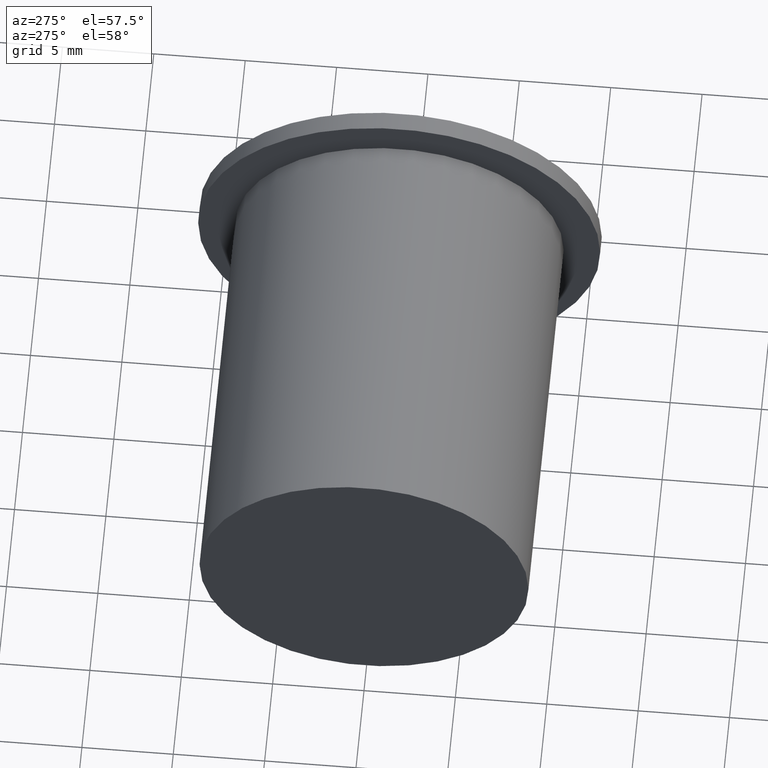
[diagram: clean part render]
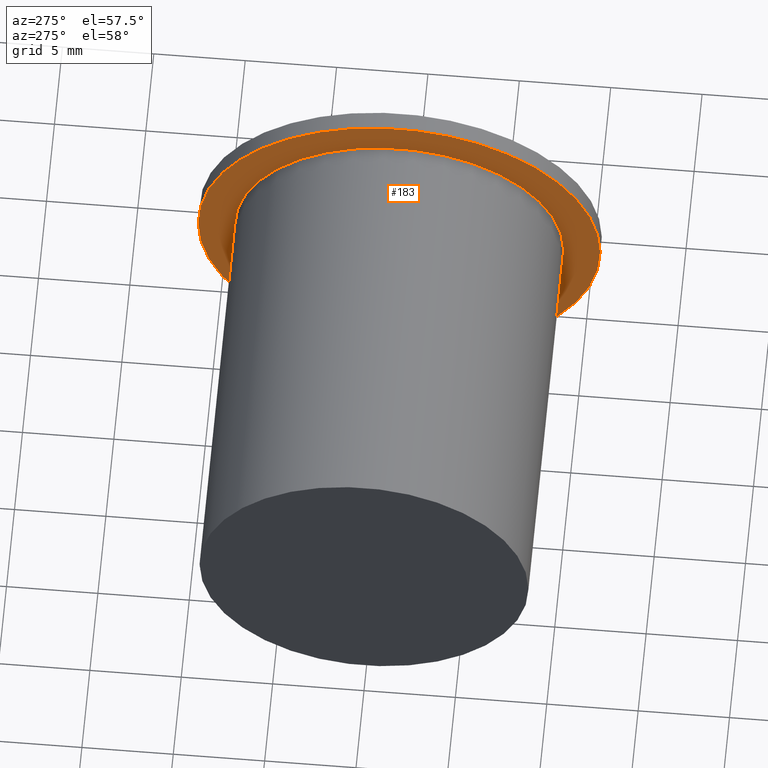
[diagram: same view with one face highlighted and labeled with its STEP entity id]
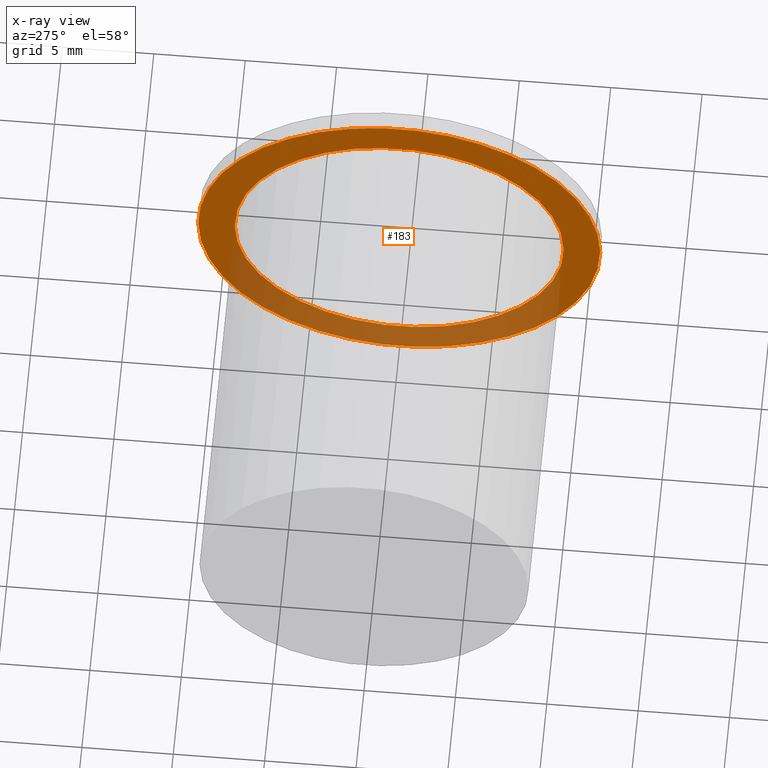
[diagram: x-ray of the same camera — body ghosted, the highlighted face saturated]
A machine part, auxiliary view. The second image highlights one B-rep face of the part: STEP entity #183.
The next image is the same camera in x-ray: the body ghosted, the highlighted face saturated — about 36% of this face is hidden behind the body in this view.
In plain terms, the highlighted planar face has unit normal (1, 0, 0).
Its self-contained STEP definition (entity closure, byte-faithful):
#124=CARTESIAN_POINT('',(-3.0,10.999999999999886,0.0));
#125=VERTEX_POINT('',#124);
#132=CARTESIAN_POINT('',(-3.0,-10.999999999999886,0.0));
#133=VERTEX_POINT('',#132);
#134=CARTESIAN_POINT('',(-3.0,0.0,0.0));
#135=DIRECTION('',(1.0,0.0,0.0));
#136=DIRECTION('',(0.0,1.0,0.0));
#137=AXIS2_PLACEMENT_3D('',#134,#135,#136);
#138=CIRCLE('',#137,10.999999999999886);
#139=EDGE_CURVE('',#125,#133,#138,.T.);
#141=CARTESIAN_POINT('',(-3.0,0.0,0.0));
#142=DIRECTION('',(1.0,0.0,0.0));
#143=DIRECTION('',(0.0,1.0,0.0));
#144=AXIS2_PLACEMENT_3D('',#141,#142,#143);
#145=CIRCLE('',#144,10.999999999999886);
#146=EDGE_CURVE('',#133,#125,#145,.T.);
#154=CARTESIAN_POINT('',(-3.0,21.999999999999773,-21.999999999999773));
#155=DIRECTION('',(1.0,0.0,0.0));
#156=DIRECTION('',(0.0,0.0,1.0));
#157=AXIS2_PLACEMENT_3D('',#154,#155,#156);
#158=PLANE('',#157);
#159=ORIENTED_EDGE('',*,*,#146,.F.);
#160=ORIENTED_EDGE('',*,*,#139,.F.);
#161=EDGE_LOOP('',(#159,#160));
#162=FACE_OUTER_BOUND('',#161,.T.);
#163=CARTESIAN_POINT('',(-3.0,9.0,0.0));
#164=VERTEX_POINT('',#163);
#165=CARTESIAN_POINT('',(-3.0,-9.0,0.0));
#166=VERTEX_POINT('',#165);
#167=CARTESIAN_POINT('',(-3.0,0.0,0.0));
#168=DIRECTION('',(1.0,0.0,0.0));
#169=DIRECTION('',(0.0,1.0,0.0));
#170=AXIS2_PLACEMENT_3D('',#167,#168,#169);
#171=CIRCLE('',#170,9.0);
#172=EDGE_CURVE('',#164,#166,#171,.T.);
#173=ORIENTED_EDGE('',*,*,#172,.T.);
#174=CARTESIAN_POINT('',(-3.0,0.0,0.0));
#175=DIRECTION('',(1.0,0.0,0.0));
#176=DIRECTION('',(0.0,1.0,0.0));
#177=AXIS2_PLACEMENT_3D('',#174,#175,#176);
#178=CIRCLE('',#177,9.0);
#179=EDGE_CURVE('',#166,#164,#178,.T.);
#180=ORIENTED_EDGE('',*,*,#179,.T.);
#181=EDGE_LOOP('',(#173,#180));
#182=FACE_BOUND('',#181,.T.);
#183=ADVANCED_FACE('',(#162,#182),#158,.F.);